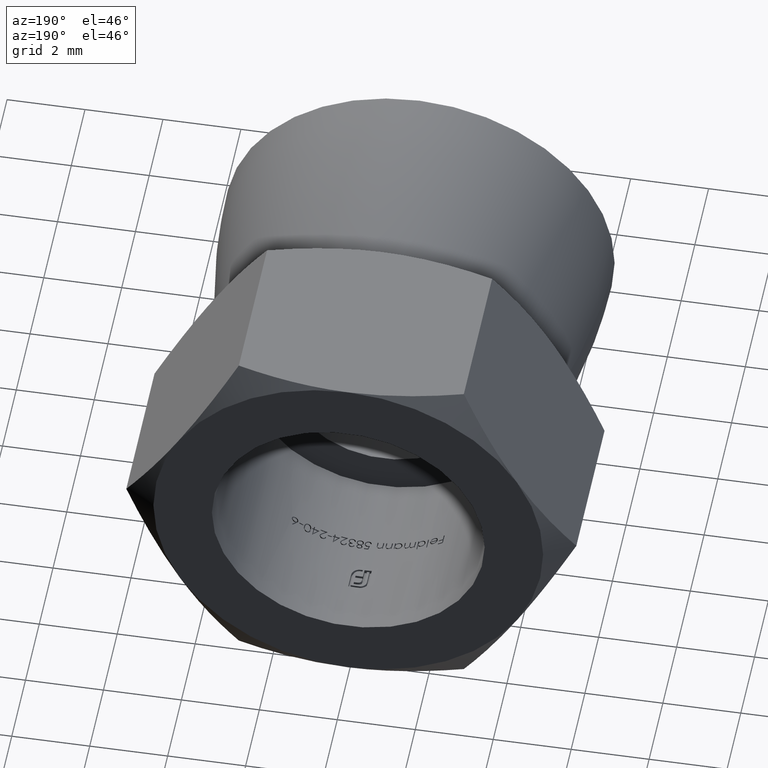
[diagram: clean part render]
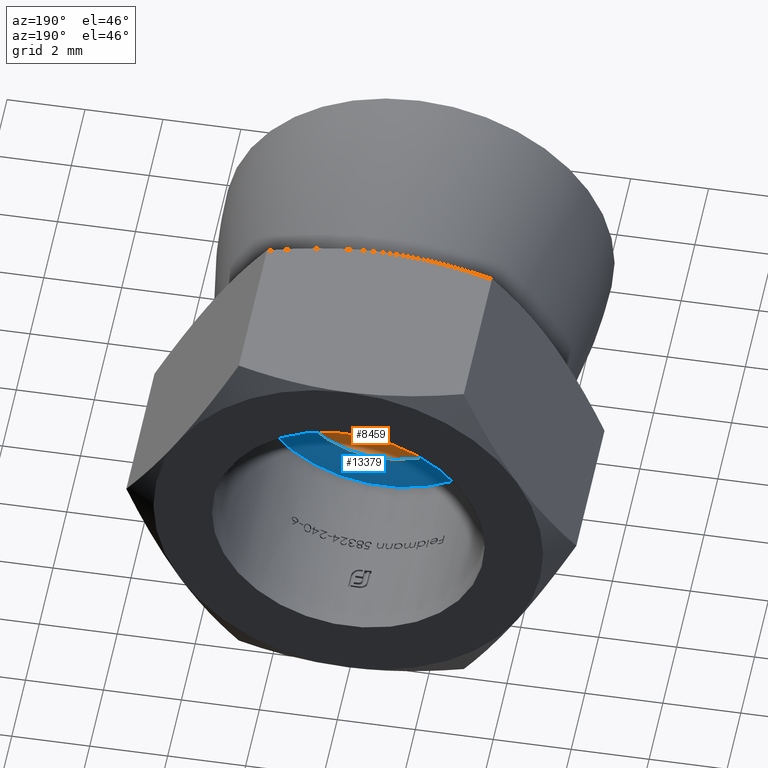
[diagram: same view with the hole feature highlighted: cylindrical wall and planar end face, labeled with their STEP entity ids]
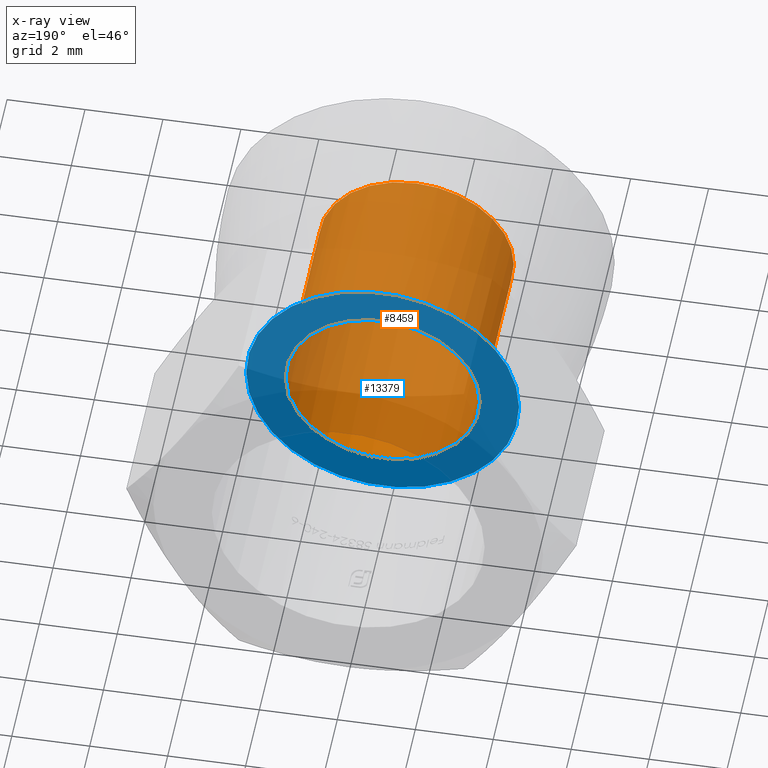
[diagram: x-ray of the same camera — body ghosted, the hole faces saturated]
A machine part, auxiliary view. The highlighted faces form one hole feature of diameter 5 mm: the cylindrical wall (entity #8459, orange) and its adjacent planar end face (entity #13379, blue) — they share a circular edge in the B-rep.
The next image is the same camera in x-ray (body ghosted, the hole faces saturated) — the bore reads through the body.
Wall:
#927 = DIRECTION ( 'NONE',  ( -0.000000000000000000, -1.000000000000000000, -0.000000000000000000 ) ) ;
#2198 = AXIS2_PLACEMENT_3D ( 'NONE', #16102, #927, #16046 ) ;
#3328 = DIRECTION ( 'NONE',  ( -3.130249737586675703E-17, 1.000000000000000000, 0.000000000000000000 ) ) ;
#3546 = CARTESIAN_POINT ( 'NONE',  ( 0.000000000000000000, 5.404145188432733171, 0.000000000000000000 ) ) ;
#3638 = CARTESIAN_POINT ( 'NONE',  ( -2.499999999999997335, 5.404145188432733171, 0.000000000000000000 ) ) ;
#3681 = CARTESIAN_POINT ( 'NONE',  ( 0.000000000000000000, 0.4999999999999989453, 2.499999999999997335 ) ) ;
#5097 = VERTEX_POINT ( 'NONE', #3681 ) ;
#5742 = ORIENTED_EDGE ( 'NONE', *, *, #6414, .T. ) ;
#6170 = DIRECTION ( 'NONE',  ( 0.000000000000000000, -1.000000000000000000, 0.000000000000000000 ) ) ;
#6292 = FACE_OUTER_BOUND ( 'NONE', #9445, .T. ) ;
#6346 = EDGE_LOOP ( 'NONE', ( #5742 ) ) ;
#6414 = EDGE_CURVE ( 'NONE', #9450, #9450, #8526, .T. ) ;
#8175 = AXIS2_PLACEMENT_3D ( 'NONE', #15105, #6170, #13808 ) ;
#8301 = FACE_OUTER_BOUND ( 'NONE', #6346, .T. ) ;
#8459 = ADVANCED_FACE ( 'NONE', ( #6292, #8301 ), #12660, .F. ) ;
#8526 = CIRCLE ( 'NONE', #12476, 2.499999999999997335 ) ;
#9445 = EDGE_LOOP ( 'NONE', ( #14202 ) ) ;
#9450 = VERTEX_POINT ( 'NONE', #3638 ) ;
#12476 = AXIS2_PLACEMENT_3D ( 'NONE', #3546, #3328, #15949 ) ;
#12632 = CIRCLE ( 'NONE', #8175, 2.499999999999997335 ) ;
#12660 = CYLINDRICAL_SURFACE ( 'NONE', #2198, 2.499999999999997335 ) ;
#13808 = DIRECTION ( 'NONE',  ( 0.000000000000000000, 0.000000000000000000, 1.000000000000000000 ) ) ;
#14202 = ORIENTED_EDGE ( 'NONE', *, *, #15992, .T. ) ;
#15105 = CARTESIAN_POINT ( 'NONE',  ( 0.000000000000000000, 0.4999999999999989453, 0.000000000000000000 ) ) ;
#15949 = DIRECTION ( 'NONE',  ( -1.000000000000000000, 0.000000000000000000, 0.000000000000000000 ) ) ;
#15992 = EDGE_CURVE ( 'NONE', #5097, #5097, #12632, .T. ) ;
#16046 = DIRECTION ( 'NONE',  ( 0.000000000000000000, 0.000000000000000000, -1.000000000000000000 ) ) ;
#16102 = CARTESIAN_POINT ( 'NONE',  ( 0.000000000000000000, 0.000000000000000000, -0.000000000000000000 ) ) ;
End face:
#706 = PLANE ( 'NONE',  #7502 ) ;
#1389 = EDGE_CURVE ( 'NONE', #5282, #5282, #7201, .T. ) ;
#1672 = EDGE_LOOP ( 'NONE', ( #14187 ) ) ;
#1922 = DIRECTION ( 'NONE',  ( -3.130249737586675703E-17, 1.000000000000000000, 0.000000000000000000 ) ) ;
#2611 = ORIENTED_EDGE ( 'NONE', *, *, #6414, .F. ) ;
#3328 = DIRECTION ( 'NONE',  ( -3.130249737586675703E-17, 1.000000000000000000, 0.000000000000000000 ) ) ;
#3419 = CARTESIAN_POINT ( 'NONE',  ( -3.499999999999996447, 5.404145188432733171, 0.000000000000000000 ) ) ;
#3546 = CARTESIAN_POINT ( 'NONE',  ( 0.000000000000000000, 5.404145188432733171, 0.000000000000000000 ) ) ;
#3638 = CARTESIAN_POINT ( 'NONE',  ( -2.499999999999997335, 5.404145188432733171, 0.000000000000000000 ) ) ;
#4516 = CARTESIAN_POINT ( 'NONE',  ( 9.209966730520412963E-16, 5.404145188432733171, 0.000000000000000000 ) ) ;
#4635 = DIRECTION ( 'NONE',  ( -1.000000000000000000, -3.130249737586675703E-17, 0.000000000000000000 ) ) ;
#4805 = EDGE_LOOP ( 'NONE', ( #2611 ) ) ;
#5282 = VERTEX_POINT ( 'NONE', #3419 ) ;
#6414 = EDGE_CURVE ( 'NONE', #9450, #9450, #8526, .T. ) ;
#7201 = CIRCLE ( 'NONE', #9216, 3.499999999999997335 ) ;
#7502 = AXIS2_PLACEMENT_3D ( 'NONE', #4516, #1922, #4635 ) ;
#8526 = CIRCLE ( 'NONE', #12476, 2.499999999999997335 ) ;
#9216 = AXIS2_PLACEMENT_3D ( 'NONE', #12967, #10294, #12583 ) ;
#9450 = VERTEX_POINT ( 'NONE', #3638 ) ;
#10294 = DIRECTION ( 'NONE',  ( -3.130249737586675703E-17, 1.000000000000000000, 0.000000000000000000 ) ) ;
#12280 = FACE_OUTER_BOUND ( 'NONE', #1672, .T. ) ;
#12472 = FACE_BOUND ( 'NONE', #4805, .T. ) ;
#12476 = AXIS2_PLACEMENT_3D ( 'NONE', #3546, #3328, #15949 ) ;
#12583 = DIRECTION ( 'NONE',  ( -1.000000000000000000, 0.000000000000000000, 0.000000000000000000 ) ) ;
#12967 = CARTESIAN_POINT ( 'NONE',  ( 9.209966730520412963E-16, 5.404145188432733171, 0.000000000000000000 ) ) ;
#13379 = ADVANCED_FACE ( 'NONE', ( #12472, #12280 ), #706, .T. ) ;
#14187 = ORIENTED_EDGE ( 'NONE', *, *, #1389, .T. ) ;
#15949 = DIRECTION ( 'NONE',  ( -1.000000000000000000, 0.000000000000000000, 0.000000000000000000 ) ) ;